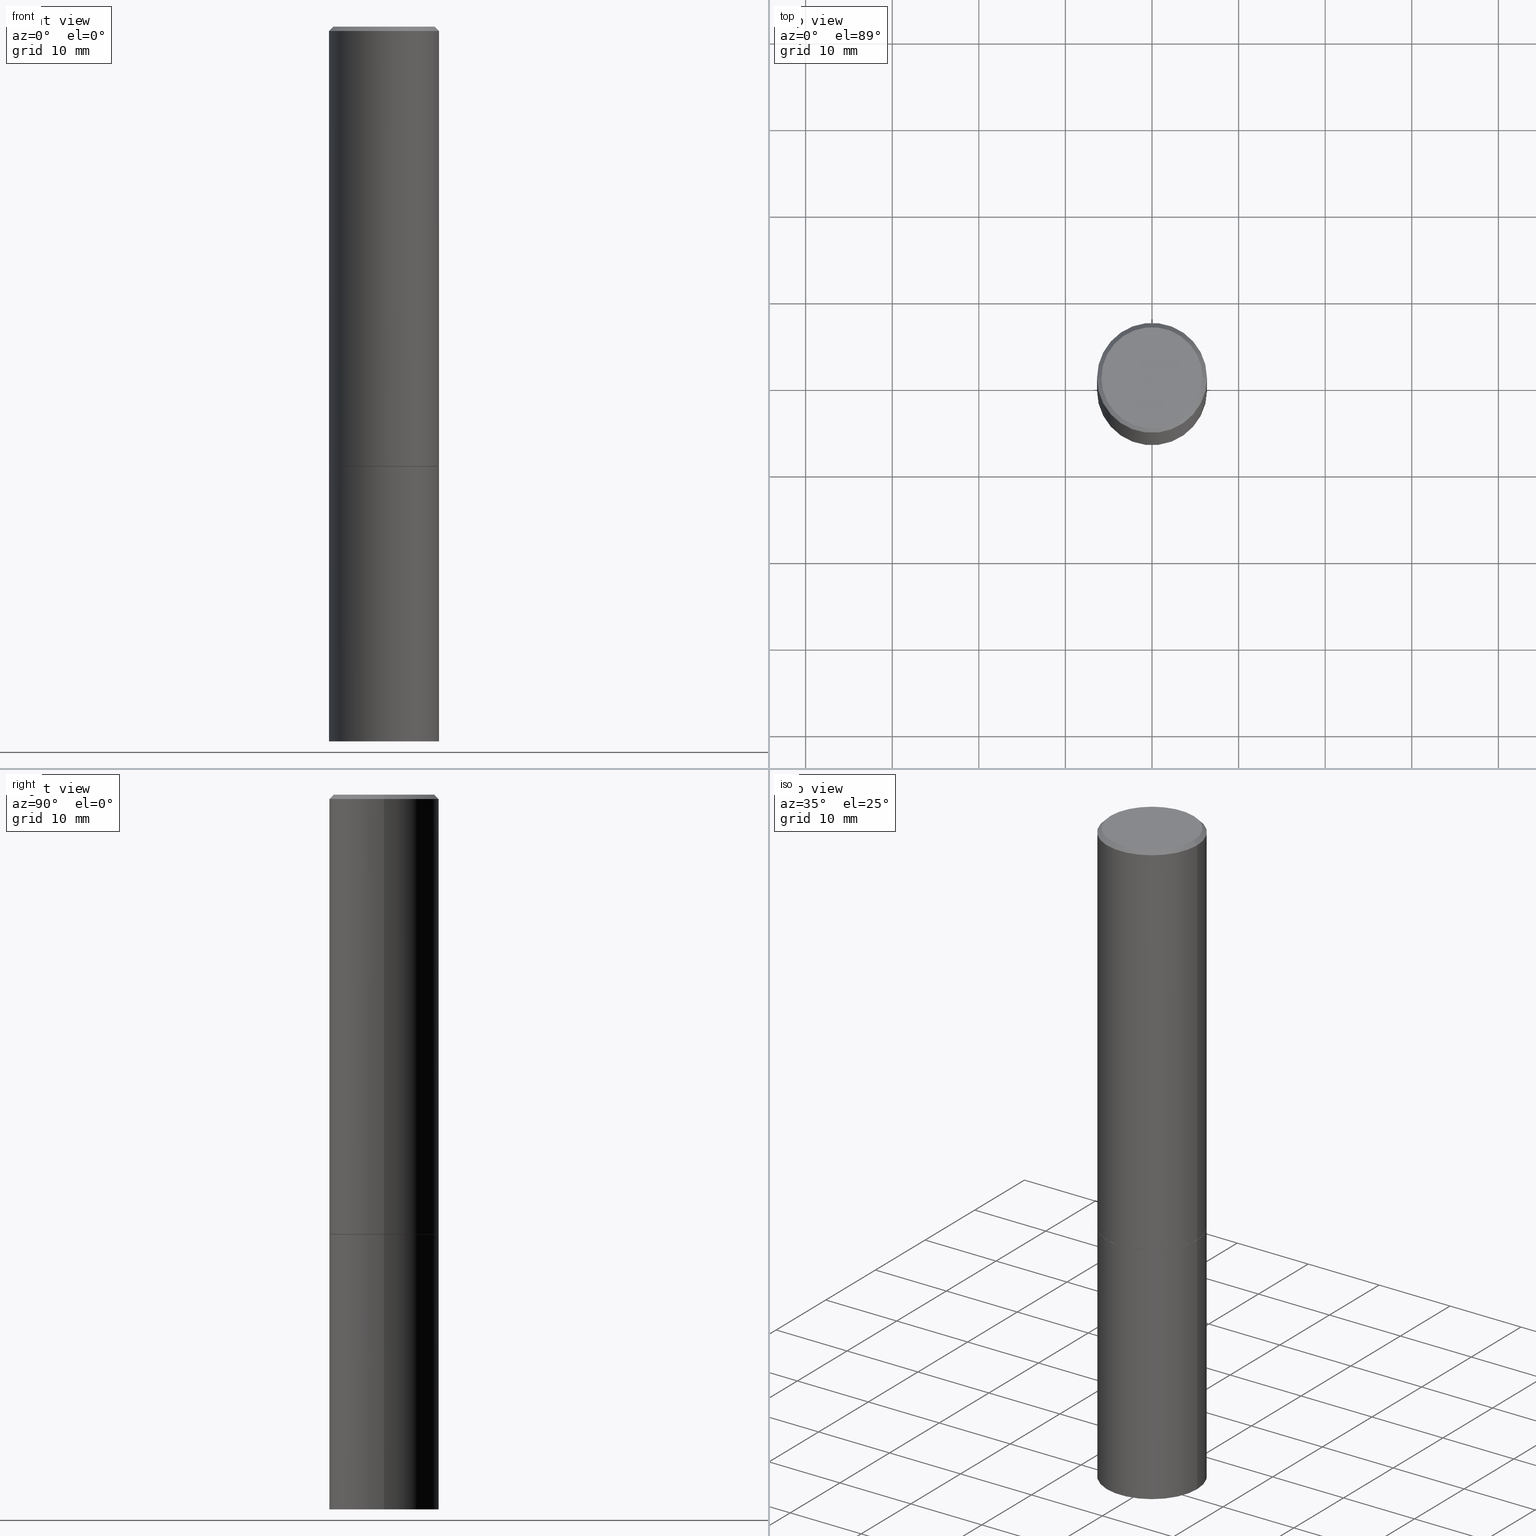
[diagram: canonical four-view strip — front | top / right | iso, engineering-drawing reading convention]
A machine part, canonical four-view strip (front | top / right | iso — engineering-drawing reading convention). The complete STEP part file that produces these views, byte-faithful:
ISO-10303-21;
HEADER;
FILE_DESCRIPTION (( 'STEP AP203' ),
    '1' );
FILE_NAME ('37194.STEP',
    '2024-02-27T20:54:14',
    ( '' ),
    ( '' ),
    'SwSTEP 2.0',
    'SolidWorks 2023',
    '' );
FILE_SCHEMA (( 'CONFIG_CONTROL_DESIGN' ));
ENDSEC;

DATA;
#1 = LINE ( 'NONE', #224, #196 ) ;
#2 = CIRCLE ( 'NONE', #158, 0.2500000000000000000 ) ;
#3 = COORDINATED_UNIVERSAL_TIME_OFFSET ( 5, 0, .BEHIND. ) ;
#4 = FACE_OUTER_BOUND ( 'NONE', #198, .T. ) ;
#5 = APPROVAL_ROLE ( '' ) ;
#6 = DIRECTION ( 'NONE',  ( -2.445468806185136877E-29, 3.491481338843145188E-15, 1.000000000000000000 ) ) ;
#7 = FACE_OUTER_BOUND ( 'NONE', #71, .T. ) ;
#8 = ADVANCED_FACE ( 'NONE', ( #60 ), #9, .T. ) ;
#9 = CONICAL_SURFACE ( 'NONE', #179, 0.2499999999999997502, 0.7853981633974473908 ) ;
#10 = CIRCLE ( 'NONE', #21, 0.2500000000000000000 ) ;
#11 = EDGE_CURVE ( 'NONE', #353, #135, #172, .T. ) ;
#12 = DIRECTION ( 'NONE',  ( 1.000000000000000000, -6.982962677686266711E-15, 4.876176775795935793E-29 ) ) ;
#13 = DIRECTION ( 'NONE',  ( 1.000000000000000000, -6.982962677686267499E-15, 0.000000000000000000 ) ) ;
#14 = CARTESIAN_POINT ( 'NONE',  ( 7.947773620101693940E-29, -1.134731435124022443E-14, -3.250000000000000000 ) ) ;
#15 = PRODUCT_DEFINITION_FORMATION_WITH_SPECIFIED_SOURCE ( 'ANY', '', #148, .NOT_KNOWN. ) ;
#16 = DIRECTION ( 'NONE',  ( -2.445468806185136597E-29, 3.491481338843145583E-15, 1.000000000000000000 ) ) ;
#17 = VERTEX_POINT ( 'NONE', #161 ) ;
#18 =( CONVERSION_BASED_UNIT ( 'INCH', #51 ) LENGTH_UNIT ( ) NAMED_UNIT ( #132 ) );
#19 = VERTEX_POINT ( 'NONE', #282 ) ;
#20 = DIRECTION ( 'NONE',  ( 1.000000000000000000, -6.982962677686266711E-15, 4.876176775795935793E-29 ) ) ;
#21 = AXIS2_PLACEMENT_3D ( 'NONE', #54, #364, #329 ) ;
#22 = EDGE_LOOP ( 'NONE', ( #301, #277, #243, #195 ) ) ;
#23 = LINE ( 'NONE', #79, #342 ) ;
#24 = VERTEX_POINT ( 'NONE', #25 ) ;
#25 = CARTESIAN_POINT ( 'NONE',  ( 0.2489999999999999991, -8.721720384430171040E-15, -2.000000000000000000 ) ) ;
#26 = PERSON_AND_ORGANIZATION_ROLE ( 'creator' ) ;
#27 = ADVANCED_FACE ( 'NONE', ( #4 ), #120, .F. ) ;
#28 = AXIS2_PLACEMENT_3D ( 'NONE', #139, #276, #306 ) ;
#29 = SECURITY_CLASSIFICATION ( '', '', #119 ) ;
#30 = PRODUCT_RELATED_PRODUCT_CATEGORY ( 'detail', '', ( #148 ) ) ;
#31 = PERSON_AND_ORGANIZATION ( #102, #247 ) ;
#32 = CALENDAR_DATE ( 2024, 27, 2 ) ;
#33 = EDGE_CURVE ( 'NONE', #227, #286, #107, .T. ) ;
#34 = CARTESIAN_POINT ( 'NONE',  ( 4.890937612370273194E-29, -6.982962677686291165E-15, -2.000000000000000000 ) ) ;
#35 = AXIS2_PLACEMENT_3D ( 'NONE', #58, #48, #361 ) ;
#36 = CARTESIAN_POINT ( 'NONE',  ( 4.890937612370273194E-29, -6.982962677686291165E-15, -2.000000000000000000 ) ) ;
#37 = EDGE_CURVE ( 'NONE', #272, #339, #1, .T. ) ;
#38 = DIRECTION ( 'NONE',  ( 0.7071067811865469066, -7.319954787623254468E-15, -0.7071067811865482389 ) ) ;
#39 = VECTOR ( 'NONE', #6, 39.37007874015748143 ) ;
#40 =( GEOMETRIC_REPRESENTATION_CONTEXT ( 3 ) GLOBAL_UNCERTAINTY_ASSIGNED_CONTEXT ( ( #294 ) ) GLOBAL_UNIT_ASSIGNED_CONTEXT ( ( #18, #244, #327 ) ) REPRESENTATION_CONTEXT ( 'NONE', 'WORKASPACE' ) );
#41 = LOCAL_TIME ( 15, 54, 14.00000000000000000, #3 ) ;
#42 = CC_DESIGN_DATE_AND_TIME_ASSIGNMENT ( #163, #143, ( #29 ) ) ;
#43 = DIRECTION ( 'NONE',  ( 1.000000000000000000, -6.982962677686266711E-15, 0.000000000000000000 ) ) ;
#44 = EDGE_LOOP ( 'NONE', ( #308, #297, #53, #157 ) ) ;
#45 = DIRECTION ( 'NONE',  ( -2.445468806185136597E-29, 3.491481338843145583E-15, 1.000000000000000000 ) ) ;
#46 = CIRCLE ( 'NONE', #96, 0.2489999999999999991 ) ;
#47 = APPROVAL_PERSON_ORGANIZATION ( #31, #57, #5 ) ;
#48 = DIRECTION ( 'NONE',  ( -2.445468806185136597E-29, 3.491481338843145583E-15, 1.000000000000000000 ) ) ;
#49 = DIRECTION ( 'NONE',  ( -2.445468806185136877E-29, 3.491481338843145188E-15, 1.000000000000000000 ) ) ;
#50 = ORIENTED_EDGE ( 'NONE', *, *, #313, .F. ) ;
#51 = LENGTH_MEASURE_WITH_UNIT ( LENGTH_MEASURE( 0.02539999999999999897 ), #185 );
#52 = DIRECTION ( 'NONE',  ( -2.445468806185136597E-29, 3.491481338843145583E-15, 1.000000000000000000 ) ) ;
#53 = ORIENTED_EDGE ( 'NONE', *, *, #268, .F. ) ;
#54 = CARTESIAN_POINT ( 'NONE',  ( 4.888492143564087591E-29, -6.979471196347447369E-15, -1.998999999999999888 ) ) ;
#55 = CONICAL_SURFACE ( 'NONE', #235, 0.2489999999999999991, 0.7853981633974141952 ) ;
#56 = CC_DESIGN_APPROVAL ( #90, ( #233 ) ) ;
#57 = APPROVAL ( #117, 'UNSPECIFIED' ) ;
#58 = CARTESIAN_POINT ( 'NONE',  ( 4.888492143564087591E-29, -6.979471196347447369E-15, -1.998999999999999888 ) ) ;
#59 = FACE_OUTER_BOUND ( 'NONE', #280, .T. ) ;
#60 = FACE_OUTER_BOUND ( 'NONE', #275, .T. ) ;
#61 = CALENDAR_DATE ( 2024, 27, 2 ) ;
#62 = EDGE_CURVE ( 'NONE', #227, #135, #162, .T. ) ;
#63 = DIRECTION ( 'NONE',  ( 2.438088387897960049E-29, -3.491481338843145188E-15, -1.000000000000000000 ) ) ;
#64 = DIRECTION ( 'NONE',  ( -0.7071067811865469066, 2.468850131082249961E-15, -0.7071067811865482389 ) ) ;
#65 = PERSON_AND_ORGANIZATION_ROLE ( 'creator' ) ;
#66 = ADVANCED_FACE ( 'NONE', ( #77 ), #55, .T. ) ;
#67 = FACE_OUTER_BOUND ( 'NONE', #343, .T. ) ;
#68 = DIRECTION ( 'NONE',  ( 1.000000000000000000, -6.982962677686262766E-15, 0.000000000000000000 ) ) ;
#69 = AXIS2_PLACEMENT_3D ( 'NONE', #160, #45, #76 ) ;
#70 = PERSON_AND_ORGANIZATION ( #102, #247 ) ;
#71 = EDGE_LOOP ( 'NONE', ( #249, #184, #314, #304 ) ) ;
#72 = DATE_TIME_ROLE ( 'creation_date' ) ;
#73 = DIRECTION ( 'NONE',  ( 1.000000000000000000, -6.982962677686266711E-15, 0.000000000000000000 ) ) ;
#74 = ADVANCED_FACE ( 'NONE', ( #7 ), #228, .T. ) ;
#75 = VECTOR ( 'NONE', #295, 39.37007874015748143 ) ;
#76 = DIRECTION ( 'NONE',  ( 1.000000000000000000, -6.982962677686266711E-15, 0.000000000000000000 ) ) ;
#77 = FACE_OUTER_BOUND ( 'NONE', #211, .T. ) ;
#78 = CARTESIAN_POINT ( 'NONE',  ( 0.2299999999999997324, -1.681434332853597236E-15, 4.268512490111905999E-18 ) ) ;
#79 = CARTESIAN_POINT ( 'NONE',  ( -0.2499999999999998612, 1.776356839400249479E-15, -1.229733772563725745E-29 ) ) ;
#80 = EDGE_CURVE ( 'NONE', #24, #360, #46, .T. ) ;
#81 = ORIENTED_EDGE ( 'NONE', *, *, #62, .F. ) ;
#82 = LINE ( 'NONE', #238, #75 ) ;
#83 = ORIENTED_EDGE ( 'NONE', *, *, #230, .T. ) ;
#84 = FACE_OUTER_BOUND ( 'NONE', #22, .T. ) ;
#85 = AXIS2_PLACEMENT_3D ( 'NONE', #330, #307, #254 ) ;
#86 = ORIENTED_EDGE ( 'NONE', *, *, #236, .F. ) ;
#87 = APPROVAL_DATE_TIME ( #201, #90 ) ;
#88 = ORIENTED_EDGE ( 'NONE', *, *, #11, .T. ) ;
#89 = APPROVAL_DATE_TIME ( #226, #251 ) ;
#90 = APPROVAL ( #124, 'UNSPECIFIED' ) ;
#91 = ORIENTED_EDGE ( 'NONE', *, *, #194, .F. ) ;
#92 = APPROVAL_PERSON_ORGANIZATION ( #168, #90, #287 ) ;
#93 = APPROVAL_STATUS ( 'not_yet_approved' ) ;
#94 = CARTESIAN_POINT ( 'NONE',  ( 0.000000000000000000, 0.000000000000000000, 0.000000000000000000 ) ) ;
#95 = CARTESIAN_POINT ( 'NONE',  ( 4.890937612370273194E-29, -6.982962677686291165E-15, -2.000000000000000000 ) ) ;
#96 = AXIS2_PLACEMENT_3D ( 'NONE', #300, #362, #303 ) ;
#97 = DIRECTION ( 'NONE',  ( -2.445468806185136597E-29, 3.491481338843145583E-15, 1.000000000000000000 ) ) ;
#98 = CC_DESIGN_APPROVAL ( #57, ( #15 ) ) ;
#99 = CC_DESIGN_PERSON_AND_ORGANIZATION_ASSIGNMENT ( #222, #261, ( #15 ) ) ;
#100 = LINE ( 'NONE', #206, #258 ) ;
#101 = EDGE_CURVE ( 'NONE', #17, #302, #324, .T. ) ;
#102 = PERSON ( 'UNSPECIFIED', 'UNSPECIFIED', 'UNSPECIFIED', ('UNSPECIFIED'), ('UNSPECIFIED'), ('UNSPECIFIED') ) ;
#103 = CARTESIAN_POINT ( 'NONE',  ( -0.2499999999999997502, 1.675911042644701999E-15, -0.02000000000000005940 ) ) ;
#104 = ORIENTED_EDGE ( 'NONE', *, *, #313, .T. ) ;
#105 = CARTESIAN_POINT ( 'NONE',  ( 0.2489999999999999991, -8.721720384430171040E-15, -2.000000000000000000 ) ) ;
#106 = ADVANCED_FACE ( 'NONE', ( #59 ), #218, .T. ) ;
#107 = CIRCLE ( 'NONE', #358, 0.2500000000000000000 ) ;
#108 = VECTOR ( 'NONE', #210, 39.37007874015748854 ) ;
#109 = LOCAL_TIME ( 15, 54, 14.00000000000000000, #146 ) ;
#110 = EDGE_LOOP ( 'NONE', ( #216, #114, #118, #81 ) ) ;
#111 = DIRECTION ( 'NONE',  ( -2.445468806185136597E-29, 3.491481338843145583E-15, 1.000000000000000000 ) ) ;
#112 = ADVANCED_FACE ( 'NONE', ( #242 ), #255, .T. ) ;
#113 = MANIFOLD_SOLID_BREP ( 'Body-Move/Copy2[1]', #318 ) ;
#114 = ORIENTED_EDGE ( 'NONE', *, *, #338, .T. ) ;
#115 = CARTESIAN_POINT ( 'NONE',  ( 0.2500000000000000000, -1.309305502066178953E-14, -3.250000000000000000 ) ) ;
#116 = DIRECTION ( 'NONE',  ( 1.000000000000000000, -6.982962677686266711E-15, 4.876176775795935793E-29 ) ) ;
#117 = APPROVAL_STATUS ( 'not_yet_approved' ) ;
#118 = ORIENTED_EDGE ( 'NONE', *, *, #122, .F. ) ;
#119 = SECURITY_CLASSIFICATION_LEVEL ( 'unclassified' ) ;
#120 = PLANE ( 'NONE',  #214 ) ;
#121 = CALENDAR_DATE ( 2024, 27, 2 ) ;
#122 = EDGE_CURVE ( 'NONE', #135, #353, #137, .T. ) ;
#123 = AXIS2_PLACEMENT_3D ( 'NONE', #177, #16, #217 ) ;
#124 = APPROVAL_STATUS ( 'not_yet_approved' ) ;
#125 = ADVANCED_FACE ( 'NONE', ( #67 ), #164, .F. ) ;
#126 = ADVANCED_BREP_SHAPE_REPRESENTATION ( '37194', ( #113, #347, #223 ), #40 ) ;
#127 = FACE_OUTER_BOUND ( 'NONE', #326, .T. ) ;
#128 = AXIS2_PLACEMENT_3D ( 'NONE', #263, #52, #116 ) ;
#129 = DIRECTION ( 'NONE',  ( -2.445468806185136597E-29, 3.491481338843145583E-15, 1.000000000000000000 ) ) ;
#130 = ORIENTED_EDGE ( 'NONE', *, *, #268, .T. ) ;
#131 = LINE ( 'NONE', #105, #285 ) ;
#132 = DIMENSIONAL_EXPONENTS ( 1.000000000000000000, 0.000000000000000000, 0.000000000000000000, 0.000000000000000000, 0.000000000000000000, 0.000000000000000000, 0.000000000000000000 ) ;
#133 = ORIENTED_EDGE ( 'NONE', *, *, #150, .F. ) ;
#134 = DIRECTION ( 'NONE',  ( -2.445468806185136597E-29, 3.491481338843145583E-15, 1.000000000000000000 ) ) ;
#135 = VERTEX_POINT ( 'NONE', #234 ) ;
#136 = CYLINDRICAL_SURFACE ( 'NONE', #346, 0.2500000000000000000 ) ;
#137 = CIRCLE ( 'NONE', #293, 0.2500000000000000000 ) ;
#138 = EDGE_LOOP ( 'NONE', ( #322, #328 ) ) ;
#139 = CARTESIAN_POINT ( 'NONE',  ( -1.043851414335219820E-46, 1.490343170380447200E-32, 4.268512490100411279E-18 ) ) ;
#140 = EDGE_CURVE ( 'NONE', #339, #302, #154, .T. ) ;
#141 = COORDINATED_UNIVERSAL_TIME_OFFSET ( 5, 0, .BEHIND. ) ;
#142 = DIRECTION ( 'NONE',  ( -1.000000000000000000, 6.982962677686265922E-15, -4.876176775795935793E-29 ) ) ;
#143 = DATE_TIME_ROLE ( 'classification_date' ) ;
#144 = AXIS2_PLACEMENT_3D ( 'NONE', #351, #129, #273 ) ;
#145 = DIRECTION ( 'NONE',  ( 2.445468806185136597E-29, -3.491481338843145583E-15, -1.000000000000000000 ) ) ;
#146 = COORDINATED_UNIVERSAL_TIME_OFFSET ( 5, 0, .BEHIND. ) ;
#147 = ORIENTED_EDGE ( 'NONE', *, *, #246, .T. ) ;
#148 = PRODUCT ( '37194', '37194', '', ( #340 ) ) ;
#149 = APPROVAL_DATE_TIME ( #283, #57 ) ;
#150 = EDGE_CURVE ( 'NONE', #286, #227, #2, .T. ) ;
#151 = CC_DESIGN_SECURITY_CLASSIFICATION ( #29, ( #15 ) ) ;
#152 = DIRECTION ( 'NONE',  ( 1.000000000000000000, -6.982962677686265922E-15, 4.876176775795935793E-29 ) ) ;
#153 = CARTESIAN_POINT ( 'NONE',  ( 0.000000000000000000, 0.000000000000000000, 0.000000000000000000 ) ) ;
#154 = CIRCLE ( 'NONE', #265, 0.2499999999999997502 ) ;
#155 = LINE ( 'NONE', #241, #108 ) ;
#156 = ORIENTED_EDGE ( 'NONE', *, *, #230, .F. ) ;
#157 = ORIENTED_EDGE ( 'NONE', *, *, #246, .F. ) ;
#158 = AXIS2_PLACEMENT_3D ( 'NONE', #14, #97, #349 ) ;
#159 = LOCAL_TIME ( 15, 54, 14.00000000000000000, #344 ) ;
#160 = CARTESIAN_POINT ( 'NONE',  ( 4.890937612370273194E-29, -6.982962677686291165E-15, -2.000000000000000000 ) ) ;
#161 = CARTESIAN_POINT ( 'NONE',  ( 0.2500000000000000000, -8.725211865769014047E-15, -1.998999999999999888 ) ) ;
#162 = LINE ( 'NONE', #167, #39 ) ;
#163 = DATE_AND_TIME ( #32, #159 ) ;
#164 = PLANE ( 'NONE',  #85 ) ;
#165 = ADVANCED_FACE ( 'NONE', ( #127 ), #345, .T. ) ;
#166 = CIRCLE ( 'NONE', #35, 0.2500000000000000000 ) ;
#167 = CARTESIAN_POINT ( 'NONE',  ( 0.2500000000000000000, -1.745740669421566678E-15, 1.219044193948983948E-29 ) ) ;
#168 = PERSON_AND_ORGANIZATION ( #102, #247 ) ;
#169 = DIRECTION ( 'NONE',  ( -2.445468806185136597E-29, 3.491481338843145583E-15, 1.000000000000000000 ) ) ;
#170 = CARTESIAN_POINT ( 'NONE',  ( 4.890937612370288047E-31, -6.982962677686311331E-17, -0.02000000000000005940 ) ) ;
#171 = COORDINATED_UNIVERSAL_TIME_OFFSET ( 5, 0, .BEHIND. ) ;
#172 = CIRCLE ( 'NONE', #341, 0.2500000000000000000 ) ;
#173 = FACE_OUTER_BOUND ( 'NONE', #138, .T. ) ;
#174 = EDGE_CURVE ( 'NONE', #360, #24, #359, .T. ) ;
#175 = DIRECTION ( 'NONE',  ( -2.445468806185136597E-29, 3.491481338843145583E-15, 1.000000000000000000 ) ) ;
#176 = ORIENTED_EDGE ( 'NONE', *, *, #33, .F. ) ;
#177 = CARTESIAN_POINT ( 'NONE',  ( -1.043851414335219820E-46, 1.490343170380447200E-32, 4.268512490100411279E-18 ) ) ;
#178 = ORIENTED_EDGE ( 'NONE', *, *, #225, .T. ) ;
#179 = AXIS2_PLACEMENT_3D ( 'NONE', #170, #145, #289 ) ;
#180 = FACE_OUTER_BOUND ( 'NONE', #44, .T. ) ;
#181 = AXIS2_PLACEMENT_3D ( 'NONE', #94, #175, #203 ) ;
#182 = EDGE_LOOP ( 'NONE', ( #91, #156, #262, #365 ) ) ;
#183 = ADVANCED_FACE ( 'NONE', ( #173 ), #292, .F. ) ;
#184 = ORIENTED_EDGE ( 'NONE', *, *, #284, .T. ) ;
#185 =( LENGTH_UNIT ( ) NAMED_UNIT ( * ) SI_UNIT ( $, .METRE. ) );
#186 = CC_DESIGN_PERSON_AND_ORGANIZATION_ASSIGNMENT ( #257, #65, ( #233 ) ) ;
#187 = ORIENTED_EDGE ( 'NONE', *, *, #174, .T. ) ;
#188 = CARTESIAN_POINT ( 'NONE',  ( 0.2499999999999997502, -1.784954126219744217E-15, -0.02000000000000005940 ) ) ;
#189 = AXIS2_PLACEMENT_3D ( 'NONE', #221, #134, #12 ) ;
#190 = DATE_AND_TIME ( #232, #332 ) ;
#191 = DIRECTION ( 'NONE',  ( -2.445468806185136597E-29, 3.491481338843145583E-15, 1.000000000000000000 ) ) ;
#192 = DIRECTION ( 'NONE',  ( 1.000000000000000000, -6.982962677686266711E-15, 0.000000000000000000 ) ) ;
#193 = SHAPE_DEFINITION_REPRESENTATION ( #271, #126 ) ;
#194 = EDGE_CURVE ( 'NONE', #363, #302, #100, .T. ) ;
#195 = ORIENTED_EDGE ( 'NONE', *, *, #11, .F. ) ;
#196 = VECTOR ( 'NONE', #64, 39.37007874015748143 ) ;
#197 = CONICAL_SURFACE ( 'NONE', #69, 0.2489999999999999991, 0.7853981633974141952 ) ;
#198 = EDGE_LOOP ( 'NONE', ( #83, #104 ) ) ;
#199 = APPLICATION_PROTOCOL_DEFINITION ( 'international standard', 'config_control_design', 1994, #248 ) ;
#200 = ORIENTED_EDGE ( 'NONE', *, *, #194, .T. ) ;
#201 = DATE_AND_TIME ( #121, #209 ) ;
#202 = CC_DESIGN_PERSON_AND_ORGANIZATION_ASSIGNMENT ( #288, #253, ( #29 ) ) ;
#203 = DIRECTION ( 'NONE',  ( 1.000000000000000000, -6.982962677686266711E-15, 4.876176775795935793E-29 ) ) ;
#204 = AXIS2_PLACEMENT_3D ( 'NONE', #205, #321, #43 ) ;
#205 = CARTESIAN_POINT ( 'NONE',  ( 4.890937612370273194E-29, -6.982962677686291165E-15, -2.000000000000000000 ) ) ;
#206 = CARTESIAN_POINT ( 'NONE',  ( 0.2499999999999997502, -1.784954126219744217E-15, -0.02000000000000005940 ) ) ;
#207 = ADVANCED_FACE ( 'NONE', ( #215 ), #237, .T. ) ;
#208 = AXIS2_PLACEMENT_3D ( 'NONE', #279, #63, #252 ) ;
#209 = LOCAL_TIME ( 15, 54, 14.00000000000000000, #141 ) ;
#210 = DIRECTION ( 'NONE',  ( -0.7071067811865232589, 7.493145998870265808E-15, 0.7071067811865715536 ) ) ;
#211 = EDGE_LOOP ( 'NONE', ( #356, #187, #147, #219 ) ) ;
#212 = CARTESIAN_POINT ( 'NONE',  ( -0.2500000000000000000, -7.388781675063007725E-15, -2.000000000000000000 ) ) ;
#213 = ORIENTED_EDGE ( 'NONE', *, *, #37, .F. ) ;
#214 = AXIS2_PLACEMENT_3D ( 'NONE', #312, #259, #142 ) ;
#215 = FACE_OUTER_BOUND ( 'NONE', #182, .T. ) ;
#216 = ORIENTED_EDGE ( 'NONE', *, *, #33, .T. ) ;
#217 = DIRECTION ( 'NONE',  ( 1.000000000000000000, -6.982962677686266711E-15, 4.876225828469314487E-29 ) ) ;
#218 = PLANE ( 'NONE',  #208 ) ;
#219 = ORIENTED_EDGE ( 'NONE', *, *, #284, .F. ) ;
#220 = CARTESIAN_POINT ( 'NONE',  ( -0.2500000000000000000, -7.388781675063007725E-15, -3.250000000000000000 ) ) ;
#221 = CARTESIAN_POINT ( 'NONE',  ( 0.000000000000000000, 0.000000000000000000, 0.000000000000000000 ) ) ;
#222 = PERSON_AND_ORGANIZATION ( #102, #247 ) ;
#223 = AXIS2_PLACEMENT_3D ( 'NONE', #317, #366, #333 ) ;
#224 = CARTESIAN_POINT ( 'NONE',  ( -0.2499999999999997502, 1.675911042644701999E-15, -0.02000000000000005940 ) ) ;
#225 = EDGE_CURVE ( 'NONE', #19, #339, #23, .T. ) ;
#226 = DATE_AND_TIME ( #336, #41 ) ;
#227 = VERTEX_POINT ( 'NONE', #115 ) ;
#228 = CYLINDRICAL_SURFACE ( 'NONE', #128, 0.2499999999999998612 ) ;
#229 = APPLICATION_CONTEXT ( 'configuration controlled 3d designs of mechanical parts and assemblies' ) ;
#230 = EDGE_CURVE ( 'NONE', #272, #363, #231, .T. ) ;
#231 = CIRCLE ( 'NONE', #28, 0.2299999999999997324 ) ;
#232 = CALENDAR_DATE ( 2024, 27, 2 ) ;
#233 = PRODUCT_DEFINITION ( 'UNKNOWN', '', #15, #355 ) ;
#234 = CARTESIAN_POINT ( 'NONE',  ( 0.2500000000000000000, -8.728703347107857054E-15, -2.000000000000000000 ) ) ;
#235 = AXIS2_PLACEMENT_3D ( 'NONE', #260, #316, #192 ) ;
#236 = EDGE_CURVE ( 'NONE', #302, #339, #296, .T. ) ;
#237 = CONICAL_SURFACE ( 'NONE', #305, 0.2499999999999997502, 0.7853981633974473908 ) ;
#238 = CARTESIAN_POINT ( 'NONE',  ( -0.2500000000000000000, 1.776356839400250465E-15, -1.229733772563726445E-29 ) ) ;
#239 = CC_DESIGN_PERSON_AND_ORGANIZATION_ASSIGNMENT ( #70, #315, ( #148 ) ) ;
#240 = ORIENTED_EDGE ( 'NONE', *, *, #122, .T. ) ;
#241 = CARTESIAN_POINT ( 'NONE',  ( -0.2489999999999999991, -5.213711265643641709E-15, -2.000000000000000000 ) ) ;
#242 = FACE_OUTER_BOUND ( 'NONE', #110, .T. ) ;
#243 = ORIENTED_EDGE ( 'NONE', *, *, #62, .T. ) ;
#244 =( NAMED_UNIT ( * ) PLANE_ANGLE_UNIT ( ) SI_UNIT ( $, .RADIAN. ) );
#245 = DIRECTION ( 'NONE',  ( -2.445468806185136877E-29, 3.491481338843145188E-15, 1.000000000000000000 ) ) ;
#246 = EDGE_CURVE ( 'NONE', #24, #17, #131, .T. ) ;
#247 = ORGANIZATION ( 'UNSPECIFIED', 'UNSPECIFIED', '' ) ;
#248 = APPLICATION_CONTEXT ( 'configuration controlled 3d designs of mechanical parts and assemblies' ) ;
#249 = ORIENTED_EDGE ( 'NONE', *, *, #225, .F. ) ;
#250 = CARTESIAN_POINT ( 'NONE',  ( 4.890937612370288047E-31, -6.982962677686311331E-17, -0.02000000000000005940 ) ) ;
#251 = APPROVAL ( #93, 'UNSPECIFIED' ) ;
#252 = DIRECTION ( 'NONE',  ( -1.000000000000000000, 6.982962677686265922E-15, -4.876176775795935793E-29 ) ) ;
#253 = PERSON_AND_ORGANIZATION_ROLE ( 'classification_officer' ) ;
#254 = DIRECTION ( 'NONE',  ( -1.000000000000000000, 6.982962677686265922E-15, -4.876176775795935793E-29 ) ) ;
#255 = CYLINDRICAL_SURFACE ( 'NONE', #189, 0.2500000000000000000 ) ;
#256 = CARTESIAN_POINT ( 'NONE',  ( 7.947773620101693940E-29, -1.134731435124022443E-14, -3.250000000000000000 ) ) ;
#257 = PERSON_AND_ORGANIZATION ( #102, #247 ) ;
#258 = VECTOR ( 'NONE', #38, 39.37007874015748143 ) ;
#259 = DIRECTION ( 'NONE',  ( 2.438088387897960049E-29, -3.491481338843145188E-15, -1.000000000000000000 ) ) ;
#260 = CARTESIAN_POINT ( 'NONE',  ( 4.890937612370273194E-29, -6.982962677686291165E-15, -2.000000000000000000 ) ) ;
#261 = PERSON_AND_ORGANIZATION_ROLE ( 'design_supplier' ) ;
#262 = ORIENTED_EDGE ( 'NONE', *, *, #37, .T. ) ;
#263 = CARTESIAN_POINT ( 'NONE',  ( 0.000000000000000000, 0.000000000000000000, 0.000000000000000000 ) ) ;
#264 = PERSON_AND_ORGANIZATION ( #102, #247 ) ;
#265 = AXIS2_PLACEMENT_3D ( 'NONE', #267, #270, #13 ) ;
#266 = CC_DESIGN_APPROVAL ( #251, ( #29 ) ) ;
#267 = CARTESIAN_POINT ( 'NONE',  ( 4.890937612370288047E-31, -6.982962677686311331E-17, -0.02000000000000005940 ) ) ;
#268 = EDGE_CURVE ( 'NONE', #17, #19, #10, .T. ) ;
#269 = CIRCLE ( 'NONE', #123, 0.2299999999999997324 ) ;
#270 = DIRECTION ( 'NONE',  ( -2.445468806185136597E-29, 3.491481338843145583E-15, 1.000000000000000000 ) ) ;
#271 = PRODUCT_DEFINITION_SHAPE ( 'NONE', 'NONE',  #233 ) ;
#272 = VERTEX_POINT ( 'NONE', #354 ) ;
#273 = DIRECTION ( 'NONE',  ( 1.000000000000000000, -6.982962677686267499E-15, 0.000000000000000000 ) ) ;
#274 = ORIENTED_EDGE ( 'NONE', *, *, #236, .T. ) ;
#275 = EDGE_LOOP ( 'NONE', ( #50, #200, #274, #213 ) ) ;
#276 = DIRECTION ( 'NONE',  ( -2.445468806185136597E-29, 3.491481338843145583E-15, 1.000000000000000000 ) ) ;
#277 = ORIENTED_EDGE ( 'NONE', *, *, #150, .T. ) ;
#278 = DIRECTION ( 'NONE',  ( 0.7071067811865232589, -2.468850131082003836E-15, 0.7071067811865715536 ) ) ;
#279 = CARTESIAN_POINT ( 'NONE',  ( 1.745740669421645958E-15, 0.2499999999999886480, -3.250000000000001332 ) ) ;
#280 = EDGE_LOOP ( 'NONE', ( #176, #133 ) ) ;
#281 = DIRECTION ( 'NONE',  ( -1.000000000000000000, 6.982962677686267499E-15, 0.000000000000000000 ) ) ;
#282 = CARTESIAN_POINT ( 'NONE',  ( -0.2499999999999999722, -1.748293572161904475E-15, -1.998999999999999888 ) ) ;
#283 = DATE_AND_TIME ( #61, #109 ) ;
#284 = EDGE_CURVE ( 'NONE', #19, #17, #166, .T. ) ;
#285 = VECTOR ( 'NONE', #278, 39.37007874015748854 ) ;
#286 = VERTEX_POINT ( 'NONE', #220 ) ;
#287 = APPROVAL_ROLE ( '' ) ;
#288 = PERSON_AND_ORGANIZATION ( #102, #247 ) ;
#289 = DIRECTION ( 'NONE',  ( -1.000000000000000000, 6.982962677686267499E-15, 0.000000000000000000 ) ) ;
#290 = CLOSED_SHELL ( 'NONE', ( #299, #165, #8, #207, #74, #66, #183, #27 ) ) ;
#291 = ADVANCED_FACE ( 'NONE', ( #84 ), #136, .T. ) ;
#292 = PLANE ( 'NONE',  #325 ) ;
#293 = AXIS2_PLACEMENT_3D ( 'NONE', #95, #319, #73 ) ;
#294 = UNCERTAINTY_MEASURE_WITH_UNIT (LENGTH_MEASURE( 1.000000000000000082E-05 ), #18, 'distance_accuracy_value', 'NONE');
#295 = DIRECTION ( 'NONE',  ( -2.445468806185136877E-29, 3.491481338843145188E-15, 1.000000000000000000 ) ) ;
#296 = CIRCLE ( 'NONE', #144, 0.2499999999999997502 ) ;
#297 = ORIENTED_EDGE ( 'NONE', *, *, #352, .T. ) ;
#298 = DIRECTION ( 'NONE',  ( 2.445468806185136597E-29, -3.491481338843145583E-15, -1.000000000000000000 ) ) ;
#299 = ADVANCED_FACE ( 'NONE', ( #180 ), #197, .T. ) ;
#300 = CARTESIAN_POINT ( 'NONE',  ( 4.890937612370273194E-29, -6.982962677686291165E-15, -2.000000000000000000 ) ) ;
#301 = ORIENTED_EDGE ( 'NONE', *, *, #338, .F. ) ;
#302 = VERTEX_POINT ( 'NONE', #188 ) ;
#303 = DIRECTION ( 'NONE',  ( 1.000000000000000000, -6.982962677686266711E-15, 0.000000000000000000 ) ) ;
#304 = ORIENTED_EDGE ( 'NONE', *, *, #140, .F. ) ;
#305 = AXIS2_PLACEMENT_3D ( 'NONE', #250, #298, #281 ) ;
#306 = DIRECTION ( 'NONE',  ( 1.000000000000000000, -6.982962677686266711E-15, 4.876225828469314487E-29 ) ) ;
#307 = DIRECTION ( 'NONE',  ( 2.438088387897960049E-29, -3.491481338843145188E-15, -1.000000000000000000 ) ) ;
#308 = ORIENTED_EDGE ( 'NONE', *, *, #80, .T. ) ;
#309 = APPROVAL_ROLE ( '' ) ;
#310 = CC_DESIGN_DATE_AND_TIME_ASSIGNMENT ( #190, #72, ( #233 ) ) ;
#311 = PERSON_AND_ORGANIZATION ( #102, #247 ) ;
#312 = CARTESIAN_POINT ( 'NONE',  ( 1.606081415867839292E-15, 0.2299999999999997324, -8.009064516888723911E-16 ) ) ;
#313 = EDGE_CURVE ( 'NONE', #363, #272, #269, .T. ) ;
#314 = ORIENTED_EDGE ( 'NONE', *, *, #101, .T. ) ;
#315 = PERSON_AND_ORGANIZATION_ROLE ( 'design_owner' ) ;
#316 = DIRECTION ( 'NONE',  ( -2.445468806185136597E-29, 3.491481338843145583E-15, 1.000000000000000000 ) ) ;
#317 = CARTESIAN_POINT ( 'NONE',  ( 0.000000000000000000, 0.000000000000000000, 0.000000000000000000 ) ) ;
#318 = CLOSED_SHELL ( 'NONE', ( #112, #106, #125, #291 ) ) ;
#319 = DIRECTION ( 'NONE',  ( -2.445468806185136597E-29, 3.491481338843145583E-15, 1.000000000000000000 ) ) ;
#320 = APPROVAL_PERSON_ORGANIZATION ( #264, #251, #309 ) ;
#321 = DIRECTION ( 'NONE',  ( -2.445468806185136597E-29, 3.491481338843145583E-15, 1.000000000000000000 ) ) ;
#322 = ORIENTED_EDGE ( 'NONE', *, *, #80, .F. ) ;
#323 = CARTESIAN_POINT ( 'NONE',  ( -0.2489999999999999991, -5.208412811295418518E-15, -2.000000000000000000 ) ) ;
#324 = LINE ( 'NONE', #334, #350 ) ;
#325 = AXIS2_PLACEMENT_3D ( 'NONE', #36, #348, #152 ) ;
#326 = EDGE_LOOP ( 'NONE', ( #130, #178, #86, #335 ) ) ;
#327 =( NAMED_UNIT ( * ) SI_UNIT ( $, .STERADIAN. ) SOLID_ANGLE_UNIT ( ) );
#328 = ORIENTED_EDGE ( 'NONE', *, *, #174, .F. ) ;
#329 = DIRECTION ( 'NONE',  ( 1.000000000000000000, -6.982962677686266711E-15, 0.000000000000000000 ) ) ;
#330 = CARTESIAN_POINT ( 'NONE',  ( 1.745740669421615390E-15, 0.2499999999999930334, -2.000000000000000888 ) ) ;
#331 = DIRECTION ( 'NONE',  ( 1.000000000000000000, -6.982962677686266711E-15, 0.000000000000000000 ) ) ;
#332 = LOCAL_TIME ( 15, 54, 14.00000000000000000, #171 ) ;
#333 = DIRECTION ( 'NONE',  ( 1.000000000000000000, 0.000000000000000000, 0.000000000000000000 ) ) ;
#334 = CARTESIAN_POINT ( 'NONE',  ( 0.2499999999999998612, -1.745740669421565692E-15, 1.219044193948983248E-29 ) ) ;
#335 = ORIENTED_EDGE ( 'NONE', *, *, #101, .F. ) ;
#336 = CALENDAR_DATE ( 2024, 27, 2 ) ;
#337 = APPLICATION_PROTOCOL_DEFINITION ( 'international standard', 'config_control_design', 1994, #229 ) ;
#338 = EDGE_CURVE ( 'NONE', #286, #353, #82, .T. ) ;
#339 = VERTEX_POINT ( 'NONE', #103 ) ;
#340 = MECHANICAL_CONTEXT ( 'NONE', #248, 'mechanical' ) ;
#341 = AXIS2_PLACEMENT_3D ( 'NONE', #34, #169, #331 ) ;
#342 = VECTOR ( 'NONE', #245, 39.37007874015748143 ) ;
#343 = EDGE_LOOP ( 'NONE', ( #240, #88 ) ) ;
#344 = COORDINATED_UNIVERSAL_TIME_OFFSET ( 5, 0, .BEHIND. ) ;
#345 = CYLINDRICAL_SURFACE ( 'NONE', #181, 0.2499999999999998612 ) ;
#346 = AXIS2_PLACEMENT_3D ( 'NONE', #153, #111, #20 ) ;
#347 = MANIFOLD_SOLID_BREP ( 'Body-Move/Copy2[2]', #290 ) ;
#348 = DIRECTION ( 'NONE',  ( -2.438088387897960049E-29, 3.491481338843145188E-15, 1.000000000000000000 ) ) ;
#349 = DIRECTION ( 'NONE',  ( 1.000000000000000000, -6.982962677686262766E-15, 0.000000000000000000 ) ) ;
#350 = VECTOR ( 'NONE', #49, 39.37007874015748143 ) ;
#351 = CARTESIAN_POINT ( 'NONE',  ( 4.890937612370288047E-31, -6.982962677686311331E-17, -0.02000000000000005940 ) ) ;
#352 = EDGE_CURVE ( 'NONE', #360, #19, #155, .T. ) ;
#353 = VERTEX_POINT ( 'NONE', #212 ) ;
#354 = CARTESIAN_POINT ( 'NONE',  ( -0.2299999999999997324, 1.640996229256270744E-15, 4.268512490089056766E-18 ) ) ;
#355 = DESIGN_CONTEXT ( 'detailed design', #229, 'design' ) ;
#356 = ORIENTED_EDGE ( 'NONE', *, *, #352, .F. ) ;
#357 = CC_DESIGN_PERSON_AND_ORGANIZATION_ASSIGNMENT ( #311, #26, ( #15 ) ) ;
#358 = AXIS2_PLACEMENT_3D ( 'NONE', #256, #191, #68 ) ;
#359 = CIRCLE ( 'NONE', #204, 0.2489999999999999991 ) ;
#360 = VERTEX_POINT ( 'NONE', #323 ) ;
#361 = DIRECTION ( 'NONE',  ( 1.000000000000000000, -6.982962677686266711E-15, 0.000000000000000000 ) ) ;
#362 = DIRECTION ( 'NONE',  ( -2.445468806185136597E-29, 3.491481338843145583E-15, 1.000000000000000000 ) ) ;
#363 = VERTEX_POINT ( 'NONE', #78 ) ;
#364 = DIRECTION ( 'NONE',  ( -2.445468806185136597E-29, 3.491481338843145583E-15, 1.000000000000000000 ) ) ;
#365 = ORIENTED_EDGE ( 'NONE', *, *, #140, .T. ) ;
#366 = DIRECTION ( 'NONE',  ( 0.000000000000000000, 0.000000000000000000, 1.000000000000000000 ) ) ;
ENDSEC;
END-ISO-10303-21;
